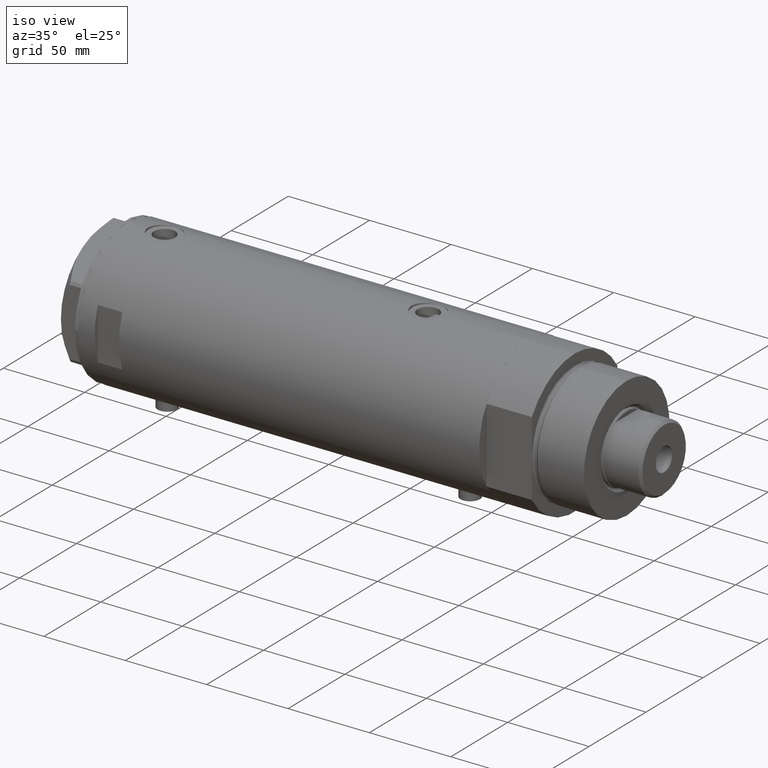
[diagram: clean part render]
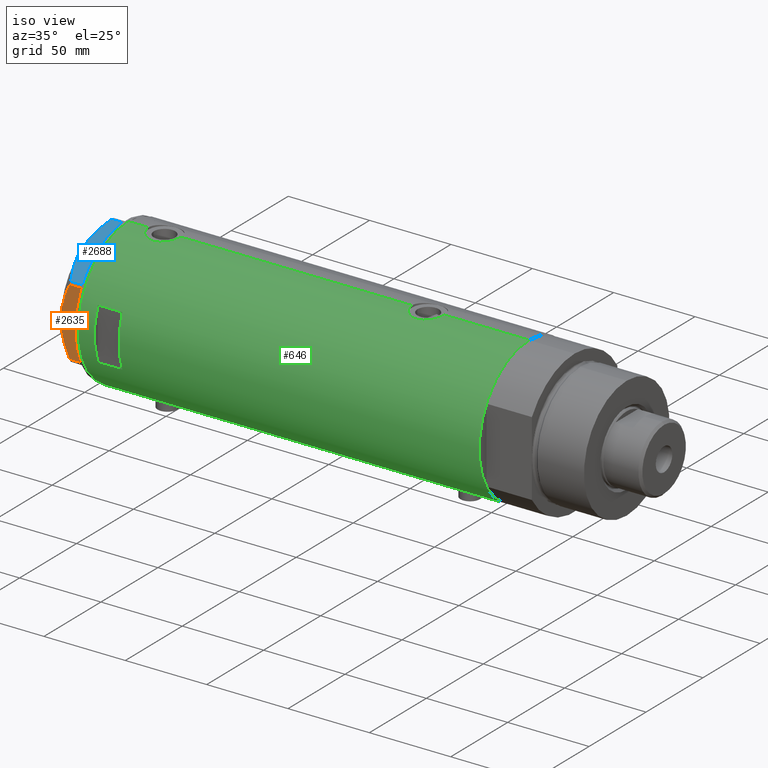
[diagram: same view with three faces highlighted in distinct colors, each labeled with its STEP entity id]
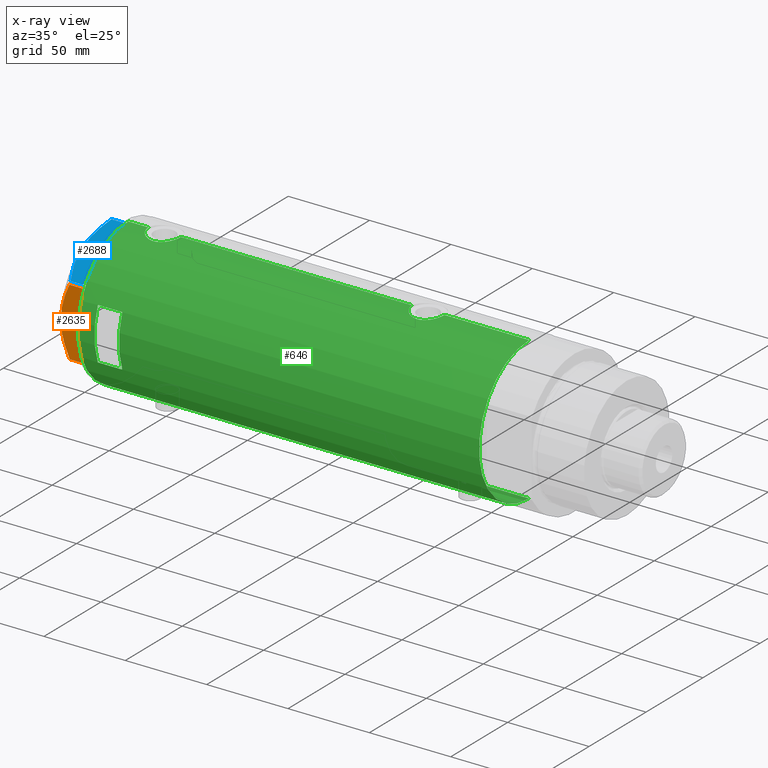
[diagram: x-ray of the same camera — body ghosted, the three highlighted faces saturated]
A machine part, iso view with three faces highlighted in distinct colors.
The next image is the same camera in x-ray (body ghosted, the three faces saturated) — at least one of them is partly hidden behind the body in this view.
Their STEP definitions:

[orange] entity #2635 — the highlighted planar face has unit normal (-0, 1, 0).
#28 = ORIENTED_EDGE ( 'NONE', *, *, #4064, .F. ) ;
#113 = CARTESIAN_POINT ( 'NONE',  ( -37.75000000000000711, 20.67497266190837024, 0.000000000000000000 ) ) ;
#307 = CARTESIAN_POINT ( 'NONE',  ( -37.75000000000000000, -17.40390235304479205, 9.187919079516763787 ) ) ;
#321 = VERTEX_POINT ( 'NONE', #113 ) ;
#353 = CARTESIAN_POINT ( 'NONE',  ( -37.74999999999999289, -16.56731140591524110, 9.531835068628826235 ) ) ;
#437 = VECTOR ( 'NONE', #613, 1000.000000000000000 ) ;
#475 = CARTESIAN_POINT ( 'NONE',  ( -37.75000000000000711, 21.79497266190837124, 13.00000000000000000 ) ) ;
#489 = DIRECTION ( 'NONE',  ( 0.000000000000000000, 0.000000000000000000, 1.000000000000000000 ) ) ;
#613 = DIRECTION ( 'NONE',  ( 0.000000000000000000, 0.000000000000000000, -1.000000000000000000 ) ) ;
#723 = CARTESIAN_POINT ( 'NONE',  ( -37.75000000000000000, -0.9015134592203577490, 13.00000000000000178 ) ) ;
#732 = CARTESIAN_POINT ( 'NONE',  ( -37.75000000000001421, 19.06473524669327446, 8.482612457517163307 ) ) ;
#759 = CARTESIAN_POINT ( 'NONE',  ( -37.75000000000000000, 7.143641079404827288, 12.47474846747316946 ) ) ;
#1008 = ORIENTED_EDGE ( 'NONE', *, *, #2862, .T. ) ;
#1038 = CARTESIAN_POINT ( 'NONE',  ( -37.74999999999999289, -20.67497266190837379, 0.000000000000000000 ) ) ;
#1048 = CARTESIAN_POINT ( 'NONE',  ( -37.75000000000000000, -1.811728074765795338, 12.96720910498919999 ) ) ;
#1073 = CARTESIAN_POINT ( 'NONE',  ( -37.75000000000000711, 20.67497266190838090, 7.709124142616995634 ) ) ;
#1092 = CARTESIAN_POINT ( 'NONE',  ( -37.75000000000000000, -19.86857906850810096, 8.096480699986589258 ) ) ;
#1104 = VERTEX_POINT ( 'NONE', #3779 ) ;
#1125 = B_SPLINE_CURVE_WITH_KNOTS ( 'NONE', 3,
 ( #4202, #723, #1048, #3860, #1703, #3881, #3200, #2099, #3516, #353, #307, #1749, #1092, #3176 ),
 .UNSPECIFIED., .F., .F.,
 ( 4, 2, 2, 2, 2, 2, 4 ),
 ( 0.07749717587205659508, 0.08017617902235898986, 0.08285518217266138463, 0.08821318847326617418, 0.09357119477387096373, 0.09625019792417334463, 0.09892920107447573941 ),
 .UNSPECIFIED. ) ;
#1226 = DIRECTION ( 'NONE',  ( -3.183713056926429451E-16, 1.000000000000000000, 0.000000000000000000 ) ) ;
#1264 = CARTESIAN_POINT ( 'NONE',  ( -37.75000000000000711, 21.79497266190837124, 0.000000000000000000 ) ) ;
#1484 = ORIENTED_EDGE ( 'NONE', *, *, #2885, .T. ) ;
#1531 = FACE_OUTER_BOUND ( 'NONE', #3214, .T. ) ;
#1703 = CARTESIAN_POINT ( 'NONE',  ( -37.75000000000000000, -4.503994958793054337, 12.74237531377022670 ) ) ;
#1749 = CARTESIAN_POINT ( 'NONE',  ( -37.75000000000000000, -19.05362936076134517, 8.470554105526115762 ) ) ;
#1757 = CARTESIAN_POINT ( 'NONE',  ( -37.75000000000000711, 3.615248338761639868, 13.00000000000000355 ) ) ;
#1821 = VERTEX_POINT ( 'NONE', #4514 ) ;
#2080 = VERTEX_POINT ( 'NONE', #1038 ) ;
#2099 = CARTESIAN_POINT ( 'NONE',  ( -37.74999999999999289, -12.34877760086739862, 11.06613894200179260 ) ) ;
#2239 = LINE ( 'NONE', #4008, #2288 ) ;
#2288 = VECTOR ( 'NONE', #489, 1000.000000000000000 ) ;
#2329 = CARTESIAN_POINT ( 'NONE',  ( -37.75000000000000711, 20.67497266190837024, 13.00000000000000000 ) ) ;
#2484 = VERTEX_POINT ( 'NONE', #3340 ) ;
#2486 = CARTESIAN_POINT ( 'NONE',  ( -37.74999999999999289, 14.04433099034388199, 10.48027127384610857 ) ) ;
#2514 = CARTESIAN_POINT ( 'NONE',  ( -37.75000000000000000, -1.201851678989727067E-14, 13.00000000000000000 ) ) ;
#2635 = ADVANCED_FACE ( 'NONE', ( #1531 ), #3634, .F. ) ;
#2659 = VECTOR ( 'NONE', #2718, 1000.000000000000000 ) ;
#2718 = DIRECTION ( 'NONE',  ( 3.183713056926429451E-16, -1.000000000000000000, 0.000000000000000000 ) ) ;
#2775 = ORIENTED_EDGE ( 'NONE', *, *, #3360, .T. ) ;
#2862 = EDGE_CURVE ( 'NONE', #1104, #321, #4132, .T. ) ;
#2885 = EDGE_CURVE ( 'NONE', #321, #2080, #3062, .T. ) ;
#3062 = LINE ( 'NONE', #1264, #2659 ) ;
#3176 = CARTESIAN_POINT ( 'NONE',  ( -37.74999999999999289, -20.67497266190838090, 7.709124142616975206 ) ) ;
#3200 = CARTESIAN_POINT ( 'NONE',  ( -37.75000000000000000, -8.905753572404320195, 11.99914237172014886 ) ) ;
#3214 = EDGE_LOOP ( 'NONE', ( #4489, #1008, #1484, #2775, #28 ) ) ;
#3340 = CARTESIAN_POINT ( 'NONE',  ( -37.74999999999999289, -20.67497266190838090, 7.709124142616975206 ) ) ;
#3360 = EDGE_CURVE ( 'NONE', #2080, #2484, #2239, .T. ) ;
#3516 = CARTESIAN_POINT ( 'NONE',  ( -37.74999999999999289, -14.04742653794399132, 10.50092616350622698 ) ) ;
#3522 = CARTESIAN_POINT ( 'NONE',  ( -37.75000000000000000, 17.42329546264825524, 9.202188366597436442 ) ) ;
#3544 = B_SPLINE_CURVE_WITH_KNOTS ( 'NONE', 3,
 ( #1073, #732, #3522, #4235, #2486, #4209, #4257, #759, #1757, #2514 ),
 .UNSPECIFIED., .F., .F.,
 ( 4, 2, 2, 2, 4 ),
 ( 0.05601050456479945983, 0.06138217239161374017, 0.06406800630502088034, 0.06675384021842802051, 0.07749717587205659508 ),
 .UNSPECIFIED. ) ;
#3590 = EDGE_CURVE ( 'NONE', #1104, #1821, #3544, .T. ) ;
#3634 = PLANE ( 'NONE',  #4401 ) ;
#3779 = CARTESIAN_POINT ( 'NONE',  ( -37.75000000000000711, 20.67497266190838090, 7.709124142616995634 ) ) ;
#3860 = CARTESIAN_POINT ( 'NONE',  ( -37.74999999999998579, -3.611424898442238351, 12.83826937481876662 ) ) ;
#3881 = CARTESIAN_POINT ( 'NONE',  ( -37.74999999999999289, -7.161343005612803125, 12.36677985830371895 ) ) ;
#4008 = CARTESIAN_POINT ( 'NONE',  ( -37.74999999999999289, -20.67497266190837379, 13.00000000000000000 ) ) ;
#4064 = EDGE_CURVE ( 'NONE', #1821, #2484, #1125, .T. ) ;
#4132 = LINE ( 'NONE', #2329, #437 ) ;
#4202 = CARTESIAN_POINT ( 'NONE',  ( -37.75000000000000000, -1.201851678989727067E-14, 13.00000000000000000 ) ) ;
#4209 = CARTESIAN_POINT ( 'NONE',  ( -37.74999999999999289, 12.33018559404073855, 11.04557586999680474 ) ) ;
#4235 = CARTESIAN_POINT ( 'NONE',  ( -37.75000000000000000, 14.89874562435961103, 10.17375260246623903 ) ) ;
#4257 = CARTESIAN_POINT ( 'NONE',  ( -37.74999999999999289, 11.46926194450821690, 11.30493988086503521 ) ) ;
#4359 = DIRECTION ( 'NONE',  ( 1.000000000000000000, 3.183713056926429451E-16, -0.000000000000000000 ) ) ;
#4401 = AXIS2_PLACEMENT_3D ( 'NONE', #475, #4359, #1226 ) ;
#4489 = ORIENTED_EDGE ( 'NONE', *, *, #3590, .F. ) ;
#4514 = CARTESIAN_POINT ( 'NONE',  ( -37.75000000000000000, -1.201851678989727067E-14, 13.00000000000000000 ) ) ;

[blue] entity #2688 — the highlighted planar face has unit normal (-0, 0.5, -0.866).
#71 = CARTESIAN_POINT ( 'NONE',  ( -20.44120046918716582, -31.78821273037243245, 12.96759879420491579 ) ) ;
#79 = ORIENTED_EDGE ( 'NONE', *, *, #2799, .T. ) ;
#167 = CARTESIAN_POINT ( 'NONE',  ( -0.9699484522420150912, -43.02994532381475068, 7.709124142618884790 ) ) ;
#194 = CARTESIAN_POINT ( 'NONE',  ( -36.78005154776155905, -22.35497266190830246, 7.709124142616896158 ) ) ;
#204 = VECTOR ( 'NONE', #2241, 1000.000000000000000 ) ;
#300 = DIRECTION ( 'NONE',  ( 0.000000000000000000, 0.000000000000000000, 1.000000000000000000 ) ) ;
#409 = CARTESIAN_POINT ( 'NONE',  ( -26.62598697109946855, -28.21742457861298803, 11.98878493998158312 ) ) ;
#440 = CARTESIAN_POINT ( 'NONE',  ( -6.717640657183465258, -39.71151368207270593, 10.48240969891360663 ) ) ;
#507 = VERTEX_POINT ( 'NONE', #4430 ) ;
#535 = DIRECTION ( 'NONE',  ( 0.4999999999999998890, 0.8660254037844387076, -0.000000000000000000 ) ) ;
#706 = CARTESIAN_POINT ( 'NONE',  ( -22.79667224021351757, -30.42828046930181074, 12.73960743196720280 ) ) ;
#763 = CARTESIAN_POINT ( 'NONE',  ( -8.949419886525276979, -38.42299534324038746, 11.30742055474529195 ) ) ;
#786 = CARTESIAN_POINT ( 'NONE',  ( -8.199247025946510448, -38.85610784623428060, 11.04644118613120085 ) ) ;
#810 = VECTOR ( 'NONE', #3302, 1000.000000000000227 ) ;
#850 = B_SPLINE_CURVE_WITH_KNOTS ( 'NONE', 3,
 ( #2866, #2162, #1401, #2191, #3922, #763, #786, #440, #1838, #2817, #1178, #2218 ),
 .UNSPECIFIED., .F., .F.,
 ( 4, 2, 2, 2, 2, 4 ),
 ( 0.02259271946349905580, 0.02789559809390664002, 0.03319847672431422425, 0.03584991603951802330, 0.03850135535472180848, 0.04380423398512939964 ),
 .UNSPECIFIED. ) ;
#879 = PLANE ( 'NONE',  #4176 ) ;
#881 = EDGE_CURVE ( 'NONE', #1772, #2140, #1180, .T. ) ;
#1000 = CARTESIAN_POINT ( 'NONE',  ( -36.78005154776155905, -22.35497266190830246, 7.709124142616896158 ) ) ;
#1098 = CARTESIAN_POINT ( 'NONE',  ( -18.87499999999999645, -32.69245899286255508, 13.00000000000000000 ) ) ;
#1178 = CARTESIAN_POINT ( 'NONE',  ( -2.376799045726867732, -42.21769975495670479, 8.489459328479822986 ) ) ;
#1180 = LINE ( 'NONE', #2982, #204 ) ;
#1223 = EDGE_LOOP ( 'NONE', ( #4493, #1643, #79, #2639, #3229 ) ) ;
#1368 = CARTESIAN_POINT ( 'NONE',  ( -25.11263918036253884, -29.09115633297249204, 12.35956205105863326 ) ) ;
#1401 = CARTESIAN_POINT ( 'NONE',  ( -15.78316139395997908, -34.47753284435064813, 12.87183830165164800 ) ) ;
#1405 = VERTEX_POINT ( 'NONE', #167 ) ;
#1544 = LINE ( 'NONE', #1880, #810 ) ;
#1601 = CARTESIAN_POINT ( 'NONE',  ( -33.96695484073207183, -23.97911480296823683, 9.269459228581803600 ) ) ;
#1643 = ORIENTED_EDGE ( 'NONE', *, *, #881, .T. ) ;
#1772 = VERTEX_POINT ( 'NONE', #194 ) ;
#1838 = CARTESIAN_POINT ( 'NONE',  ( -5.984301592053449248, -40.13490718873278951, 10.17879673963541087 ) ) ;
#1880 = CARTESIAN_POINT ( 'NONE',  ( -37.74999999999999289, -21.79497266190838189, 0.000000000000000000 ) ) ;
#1953 = CARTESIAN_POINT ( 'NONE',  ( -37.74999999999999289, -21.79497266190838189, 13.00000000000000000 ) ) ;
#2054 = EDGE_CURVE ( 'NONE', #2143, #1405, #3459, .T. ) ;
#2140 = VERTEX_POINT ( 'NONE', #2678 ) ;
#2143 = VERTEX_POINT ( 'NONE', #2326 ) ;
#2162 = CARTESIAN_POINT ( 'NONE',  ( -17.32290914057169928, -33.58855906836025440, 12.99999999999999822 ) ) ;
#2191 = CARTESIAN_POINT ( 'NONE',  ( -12.72654504259227259, -36.24227111762220943, 12.37795492145981235 ) ) ;
#2218 = CARTESIAN_POINT ( 'NONE',  ( -0.9699484522420150912, -43.02994532381475068, 7.709124142618884790 ) ) ;
#2241 = DIRECTION ( 'NONE',  ( -0.000000000000000000, 0.000000000000000000, -1.000000000000000000 ) ) ;
#2278 = VECTOR ( 'NONE', #300, 1000.000000000000000 ) ;
#2326 = CARTESIAN_POINT ( 'NONE',  ( -0.9699484522385920515, -43.02994532381674020, 0.000000000000000000 ) ) ;
#2639 = ORIENTED_EDGE ( 'NONE', *, *, #2054, .T. ) ;
#2640 = FACE_OUTER_BOUND ( 'NONE', #1223, .T. ) ;
#2678 = CARTESIAN_POINT ( 'NONE',  ( -36.78005154776141694, -22.35497266190838772, 0.000000000000000000 ) ) ;
#2688 = ADVANCED_FACE ( 'NONE', ( #2640 ), #879, .F. ) ;
#2799 = EDGE_CURVE ( 'NONE', #2140, #2143, #1544, .T. ) ;
#2817 = CARTESIAN_POINT ( 'NONE',  ( -3.804046002727119014, -41.39367834013252434, 9.210778219601836625 ) ) ;
#2826 = B_SPLINE_CURVE_WITH_KNOTS ( 'NONE', 3,
 ( #1000, #1601, #3020, #409, #1368, #706, #3573, #71, #2835, #1098 ),
 .UNSPECIFIED., .F., .F.,
 ( 4, 2, 2, 2, 4 ),
 ( 0.001231023567492484571, 0.01191187151549577550, 0.01725229548949741565, 0.01992250747649823572, 0.02259271946349905580 ),
 .UNSPECIFIED. ) ;
#2835 = CARTESIAN_POINT ( 'NONE',  ( -19.65653997226998584, -32.24123667949004357, 13.00000000000000178 ) ) ;
#2866 = CARTESIAN_POINT ( 'NONE',  ( -18.87499999999999645, -32.69245899286255508, 13.00000000000000000 ) ) ;
#2982 = CARTESIAN_POINT ( 'NONE',  ( -36.78005154776141694, -22.35497266190838772, 13.00000000000000000 ) ) ;
#3020 = CARTESIAN_POINT ( 'NONE',  ( -31.09047021924039811, -25.63985397350626272, 10.58681170757598977 ) ) ;
#3229 = ORIENTED_EDGE ( 'NONE', *, *, #3286, .F. ) ;
#3286 = EDGE_CURVE ( 'NONE', #507, #1405, #850, .T. ) ;
#3302 = DIRECTION ( 'NONE',  ( 0.8660254037844385966, -0.4999999999999998890, 0.000000000000000000 ) ) ;
#3397 = DIRECTION ( 'NONE',  ( -0.8660254037844387076, 0.4999999999999998890, 0.000000000000000000 ) ) ;
#3459 = LINE ( 'NONE', #4509, #2278 ) ;
#3565 = EDGE_CURVE ( 'NONE', #1772, #507, #2826, .T. ) ;
#3573 = CARTESIAN_POINT ( 'NONE',  ( -22.01686507582220997, -30.87850234557913609, 12.83692902789789869 ) ) ;
#3922 = CARTESIAN_POINT ( 'NONE',  ( -11.20965750620535673, -37.11804654508558343, 12.01242981158399914 ) ) ;
#4176 = AXIS2_PLACEMENT_3D ( 'NONE', #1953, #535, #3397 ) ;
#4430 = CARTESIAN_POINT ( 'NONE',  ( -18.87499999999999645, -32.69245899286255508, 13.00000000000000000 ) ) ;
#4493 = ORIENTED_EDGE ( 'NONE', *, *, #3565, .F. ) ;
#4509 = CARTESIAN_POINT ( 'NONE',  ( -0.9699484522385850571, -43.02994532381674020, 13.00000000000000000 ) ) ;

[green] entity #646 — the highlighted cylindrical surface (partial cylindrical patch) has radius 44 mm, axis along (-1, -0, 0).
#6 = CARTESIAN_POINT ( 'NONE',  ( 43.13833976206233700, -8.672905216733552081, 105.9203292102081804 ) ) ;
#18 = EDGE_LOOP ( 'NONE', ( #2173, #3836, #1508, #2001 ) ) ;
#23 = CARTESIAN_POINT ( 'NONE',  ( -43.91398925748692506, -2.775454910411446097, 104.8147077568106482 ) ) ;
#25 = CARTESIAN_POINT ( 'NONE',  ( -15.96871942267132027, -40.99999999999999289, 98.19999999999998863 ) ) ;
#56 = VERTEX_POINT ( 'NONE', #469 ) ;
#74 = CARTESIAN_POINT ( 'NONE',  ( 42.84860178791322483, -9.999866241079299556, -60.76603617305838156 ) ) ;
#97 = CARTESIAN_POINT ( 'NONE',  ( 43.35257225115238100, -7.523216248090028202, -67.69605303592346957 ) ) ;
#149 = EDGE_CURVE ( 'NONE', #3859, #3870, #2077, .T. ) ;
#171 = LINE ( 'NONE', #4329, #4030 ) ;
#195 = CARTESIAN_POINT ( 'NONE',  ( -43.97729452866927602, -1.427712738744856047, -80.81177092556575303 ) ) ;
#207 = CARTESIAN_POINT ( 'NONE',  ( -43.74870614644074607, -4.704745394280565485, 95.06553512659974103 ) ) ;
#243 = CARTESIAN_POINT ( 'NONE',  ( -43.58327167020068060, -6.041691433183235205, -85.28672449216634277 ) ) ;
#250 = CARTESIAN_POINT ( 'NONE',  ( 43.71528002050703066, -5.005885132985644859, -52.43693693285515423 ) ) ;
#256 = CARTESIAN_POINT ( 'NONE',  ( 43.68175117880464597, -5.289576318274434641, 109.3927754329155846 ) ) ;
#277 = CARTESIAN_POINT ( 'NONE',  ( 43.27890888111421219, -7.936045294464967093, 106.9931843665719100 ) ) ;
#286 = CARTESIAN_POINT ( 'NONE',  ( 0.000000000000000000, 0.000000000000000000, -123.2000000000000028 ) ) ;
#291 = CARTESIAN_POINT ( 'NONE',  ( -43.95442538259509035, -2.011679190499021441, 93.27906453490220429 ) ) ;
#293 = VECTOR ( 'NONE', #1387, 1000.000000000000000 ) ;
#301 = CARTESIAN_POINT ( 'NONE',  ( 43.39001814939471302, -7.304817421876466987, 94.06296539328327810 ) ) ;
#313 = CARTESIAN_POINT ( 'NONE',  ( -43.97029046111977379, -1.628482392291941805, 105.2375861979205922 ) ) ;
#314 = CARTESIAN_POINT ( 'NONE',  ( 43.57790701154751645, -6.104591320335877924, -53.15258699105065432 ) ) ;
#319 = CARTESIAN_POINT ( 'NONE',  ( 43.88203303552250389, -3.235230624304763047, 91.43207386936016690 ) ) ;
#329 = CARTESIAN_POINT ( 'NONE',  ( -43.57664920749030557, -6.089110472216500369, 97.77636913130585583 ) ) ;
#333 = CARTESIAN_POINT ( 'NONE',  ( 42.96573602780769363, -9.487415353952515673, -64.32734544583620107 ) ) ;
#358 = CARTESIAN_POINT ( 'NONE',  ( -43.59959777593762453, -5.922725608094073557, 101.2064931121741722 ) ) ;
#362 = CARTESIAN_POINT ( 'NONE',  ( 42.84850870634925712, -10.00026508230968858, -61.75583915121742251 ) ) ;
#389 = CARTESIAN_POINT ( 'NONE',  ( -43.99417593155911987, -0.8219945290704643304, 105.4093810241296296 ) ) ;
#404 = ORIENTED_EDGE ( 'NONE', *, *, #2992, .F. ) ;
#408 = CARTESIAN_POINT ( 'NONE',  ( -43.94477385411916970, -2.211843467998030111, 105.0490722992286692 ) ) ;
#420 = CIRCLE ( 'NONE', #1084, 44.00000000000000000 ) ;
#424 = EDGE_CURVE ( 'NONE', #3870, #1702, #3023, .T. ) ;
#444 = CARTESIAN_POINT ( 'NONE',  ( 44.00000000000000000, -0.6628808997490054367, 90.90000000000001990 ) ) ;
#445 = VERTEX_POINT ( 'NONE', #2626 ) ;
#464 = LINE ( 'NONE', #2593, #640 ) ;
#469 = CARTESIAN_POINT ( 'NONE',  ( 44.00000000000000000, -1.742910476879209922E-15, -71.10000000000000853 ) ) ;
#523 = CARTESIAN_POINT ( 'NONE',  ( -43.83572624786197025, -3.813948911733269664, -91.86836430220658656 ) ) ;
#530 = ORIENTED_EDGE ( 'NONE', *, *, #4059, .F. ) ;
#543 = CARTESIAN_POINT ( 'NONE',  ( -43.59959777593761743, -5.922725608094073557, -84.89350688782587895 ) ) ;
#583 = CARTESIAN_POINT ( 'NONE',  ( -43.55964145621771877, -6.209995197331128480, -86.08476386616429465 ) ) ;
#586 = DIRECTION ( 'NONE',  ( 1.000000000000000000, 0.000000000000000000, 0.000000000000000000 ) ) ;
#588 = AXIS2_PLACEMENT_3D ( 'NONE', #286, #930, #586 ) ;
#606 = CARTESIAN_POINT ( 'NONE',  ( -43.88927795770376861, -3.124736516396338093, -92.31667404923808817 ) ) ;
#623 = CARTESIAN_POINT ( 'NONE',  ( 43.39114022679085281, -7.298186114522533074, 107.7441727949206438 ) ) ;
#640 = VECTOR ( 'NONE', #2995, 1000.000000000000000 ) ;
#646 = ADVANCED_FACE ( 'NONE', ( #2458, #4171 ), #3786, .T. ) ;
#670 = CARTESIAN_POINT ( 'NONE',  ( 43.07321175413310499, -8.986876637256992595, 96.46571798011248688 ) ) ;
#671 = EDGE_LOOP ( 'NONE', ( #2449, #2005, #743, #4138, #1337, #2304, #2071, #4188, #530, #404, #2562, #2086 ) ) ;
#681 = EDGE_CURVE ( 'NONE', #445, #3632, #2846, .T. ) ;
#682 = CARTESIAN_POINT ( 'NONE',  ( -43.55981666146651321, -6.208773019004409477, 98.37562000806386209 ) ) ;
#685 = CARTESIAN_POINT ( 'NONE',  ( 43.71626298452613923, -5.019105827807316622, -69.77413437979598143 ) ) ;
#692 = CARTESIAN_POINT ( 'NONE',  ( 42.84860178791322483, -9.999866241079297779, 101.2339638269416326 ) ) ;
#708 = CARTESIAN_POINT ( 'NONE',  ( 43.94187300917954531, -2.283844398366606132, -70.84126046817048916 ) ) ;
#721 = CIRCLE ( 'NONE', #3009, 44.00000000000000000 ) ;
#727 = VERTEX_POINT ( 'NONE', #3271 ) ;
#729 = VERTEX_POINT ( 'NONE', #1670 ) ;
#730 = CARTESIAN_POINT ( 'NONE',  ( -43.80623767923739820, -4.134861581628530125, 103.9043636726069764 ) ) ;
#734 = CARTESIAN_POINT ( 'NONE',  ( 43.98503203903424463, -1.316644100880400403, -71.03472955295633540 ) ) ;
#742 = EDGE_CURVE ( 'NONE', #727, #4240, #1725, .T. ) ;
#743 = ORIENTED_EDGE ( 'NONE', *, *, #877, .T. ) ;
#767 = CARTESIAN_POINT ( 'NONE',  ( -44.00000000000000000, 5.388445781982983516E-15, 92.95000000000000284 ) ) ;
#795 = VERTEX_POINT ( 'NONE', #767 ) ;
#819 = LINE ( 'NONE', #4058, #1830 ) ;
#846 = DIRECTION ( 'NONE',  ( 0.000000000000000000, 0.000000000000000000, 1.000000000000000000 ) ) ;
#877 = EDGE_CURVE ( 'NONE', #1762, #56, #171, .T. ) ;
#889 = CARTESIAN_POINT ( 'NONE',  ( -43.55380622335315621, -6.250277076879245719, -86.49110166609810335 ) ) ;
#902 = VERTEX_POINT ( 'NONE', #2936 ) ;
#915 = CARTESIAN_POINT ( 'NONE',  ( 0.000000000000000000, 0.000000000000000000, 98.20000000000017337 ) ) ;
#930 = DIRECTION ( 'NONE',  ( 0.000000000000000000, 0.000000000000000000, 1.000000000000000000 ) ) ;
#935 = CARTESIAN_POINT ( 'NONE',  ( -43.97059312650997498, -1.620278982928819556, 93.16021308614132579 ) ) ;
#943 = CARTESIAN_POINT ( 'NONE',  ( 43.50370990764398016, -6.606474645717128169, 108.4352093528488865 ) ) ;
#948 = CARTESIAN_POINT ( 'NONE',  ( -43.58358352828439308, -6.039443007521657414, -88.52163098385740625 ) ) ;
#967 = CARTESIAN_POINT ( 'NONE',  ( 42.85249883256043546, -9.983208936152870194, 101.5657221654182081 ) ) ;
#984 = CARTESIAN_POINT ( 'NONE',  ( 43.88549648731377317, -3.229309612650767658, 110.3866430248638864 ) ) ;
#986 = EDGE_CURVE ( 'NONE', #729, #3761, #4532, .T. ) ;
#1001 = CARTESIAN_POINT ( 'NONE',  ( 43.80655905412561424, -4.132395729537631901, -51.98794673806236233 ) ) ;
#1006 = EDGE_CURVE ( 'NONE', #3125, #445, #420, .T. ) ;
#1010 = CARTESIAN_POINT ( 'NONE',  ( 43.57790701154752355, -6.104591320335876148, 108.8474130089493457 ) ) ;
#1017 = DIRECTION ( 'NONE',  ( 1.000000000000000000, 0.000000000000000000, 0.000000000000000000 ) ) ;
#1039 = CARTESIAN_POINT ( 'NONE',  ( 43.92776409818817740, -2.602555515054468582, 110.5780334928707447 ) ) ;
#1072 = CARTESIAN_POINT ( 'NONE',  ( -44.00000000000000000, 4.945856149313706956E-16, 105.4500000000000171 ) ) ;
#1075 = CARTESIAN_POINT ( 'NONE',  ( 43.92391465552168484, -2.605621203777297001, -70.76018015101780634 ) ) ;
#1084 = AXIS2_PLACEMENT_3D ( 'NONE', #3481, #3065, #4524 ) ;
#1120 = DIRECTION ( 'NONE',  ( -0.000000000000000000, -0.000000000000000000, -1.000000000000000000 ) ) ;
#1166 = LINE ( 'NONE', #1492, #4186 ) ;
#1169 = CARTESIAN_POINT ( 'NONE',  ( -43.97755541524607281, -1.419649999726221967, -92.99011143923634393 ) ) ;
#1210 = CARTESIAN_POINT ( 'NONE',  ( -43.83513771791773905, -3.820747781112549646, -81.93678981703629916 ) ) ;
#1228 = CARTESIAN_POINT ( 'NONE',  ( -43.71916086763248899, -4.968610719017467758, -90.71335998854627292 ) ) ;
#1239 = CARTESIAN_POINT ( 'NONE',  ( -44.00000000000000000, 5.388445781982983516E-15, 92.95000000000000284 ) ) ;
#1244 = CARTESIAN_POINT ( 'NONE',  ( 0.000000000000000000, 0.000000000000000000, 123.2000000000000028 ) ) ;
#1333 = CARTESIAN_POINT ( 'NONE',  ( 42.96858625215907779, -9.471543237354833167, 104.1244477931078194 ) ) ;
#1337 = ORIENTED_EDGE ( 'NONE', *, *, #3073, .T. ) ;
#1343 = CARTESIAN_POINT ( 'NONE',  ( -43.83513771791773195, -3.820747781112552754, 104.1632101829637378 ) ) ;
#1351 = EDGE_CURVE ( 'NONE', #1702, #795, #464, .T. ) ;
#1355 = CARTESIAN_POINT ( 'NONE',  ( 43.61181667275830875, -5.838254419127776096, 92.77455890582506015 ) ) ;
#1367 = CARTESIAN_POINT ( 'NONE',  ( -43.60943079847654502, -5.850114217193380206, 96.99078124073395202 ) ) ;
#1369 = CARTESIAN_POINT ( 'NONE',  ( 43.07447880731470491, -8.980869115410037296, -56.65290029795897198 ) ) ;
#1384 = CARTESIAN_POINT ( 'NONE',  ( 0.000000000000000000, 0.000000000000000000, -123.2000000000000028 ) ) ;
#1387 = DIRECTION ( 'NONE',  ( 0.000000000000000000, 0.000000000000000000, 1.000000000000000000 ) ) ;
#1395 = CARTESIAN_POINT ( 'NONE',  ( -43.71863308610075904, -4.973248429199019327, 103.0073779012117541 ) ) ;
#1398 = CARTESIAN_POINT ( 'NONE',  ( 42.86369059155249062, -9.935849517229280892, -62.40637410018199915 ) ) ;
#1427 = CARTESIAN_POINT ( 'NONE',  ( 44.00000000000000000, -2.119006702872526837E-15, 90.90000000000000568 ) ) ;
#1466 = CARTESIAN_POINT ( 'NONE',  ( -43.99999999999998579, -0.4080709675389182500, -93.15000000000000568 ) ) ;
#1472 = CARTESIAN_POINT ( 'NONE',  ( 43.13689707656755701, -8.680169016269177362, -66.10836902111202562 ) ) ;
#1492 = CARTESIAN_POINT ( 'NONE',  ( 44.00000000000000000, 0.000000000000000000, -123.2000000000000028 ) ) ;
#1508 = ORIENTED_EDGE ( 'NONE', *, *, #1006, .F. ) ;
#1557 = CARTESIAN_POINT ( 'NONE',  ( -43.88932649443424339, -3.137583818903200594, -81.47900961940457876 ) ) ;
#1565 = DIRECTION ( 'NONE',  ( 0.000000000000000000, 0.000000000000000000, 1.000000000000000000 ) ) ;
#1592 = CARTESIAN_POINT ( 'NONE',  ( -44.00000000000000711, -0.4134142287044829667, -80.65000000000003411 ) ) ;
#1599 = CARTESIAN_POINT ( 'NONE',  ( -43.71916086763249609, -4.968610719017477528, 95.38664001145379245 ) ) ;
#1616 = CIRCLE ( 'NONE', #588, 44.00000000000000000 ) ;
#1634 = CARTESIAN_POINT ( 'NONE',  ( -44.00000000000000000, 4.742402805755500961E-16, -80.65000000000000568 ) ) ;
#1635 = CARTESIAN_POINT ( 'NONE',  ( -43.94477385411918391, -2.211843467998029222, -81.05092770077139619 ) ) ;
#1642 = CARTESIAN_POINT ( 'NONE',  ( 44.00000000000000000, -3.917167710965456221E-21, -51.10000000000000853 ) ) ;
#1647 = CARTESIAN_POINT ( 'NONE',  ( 42.86761451923558042, -9.918101748202657220, 102.2186752354962636 ) ) ;
#1650 = VECTOR ( 'NONE', #4518, 1000.000000000000000 ) ;
#1670 = CARTESIAN_POINT ( 'NONE',  ( -44.00000000000000000, 5.388445916248352830E-15, 123.2000000000000028 ) ) ;
#1685 = CARTESIAN_POINT ( 'NONE',  ( -43.80686114384899810, -4.128296917151111245, 94.48984144871687363 ) ) ;
#1689 = CARTESIAN_POINT ( 'NONE',  ( 43.92776409818818451, -2.602555515054471247, -51.42196650712919137 ) ) ;
#1695 = CARTESIAN_POINT ( 'NONE',  ( 43.46477581456304051, -6.845969322274853219, 93.60355539876690045 ) ) ;
#1702 = VERTEX_POINT ( 'NONE', #1634 ) ;
#1709 = CARTESIAN_POINT ( 'NONE',  ( -43.58358352828437177, -6.039443007521655638, 97.57836901614263070 ) ) ;
#1711 = CARTESIAN_POINT ( 'NONE',  ( 43.39114022679083860, -7.298186114522538404, -54.25582720507937751 ) ) ;
#1717 = CARTESIAN_POINT ( 'NONE',  ( 43.77763691689008851, -4.427538730370032205, 109.8724271220806941 ) ) ;
#1725 = B_SPLINE_CURVE_WITH_KNOTS ( 'NONE', 3,
 ( #4510, #3099, #3141, #1039, #984, #4531, #1717, #3764, #256, #1010, #943, #623, #2728, #277, #2451, #6, #3853, #4491, #1333, #2749, #3423, #1647, #967, #692, #4140, #2090, #3070, #1741, #670, #3461, #2398, #3805, #4466, #301, #1695, #3124, #2017, #1355, #2771, #4165, #2422, #319, #2379, #3266, #4289, #444, #1427 ),
 .UNSPECIFIED., .F., .F.,
 ( 4, 2, 2, 2, 2, 2, 2, 2, 2, 2, 1, 2, 2, 2, 2, 2, 2, 2, 2, 2, 2, 2, 2, 4 ),
 ( 0.03136730421198211799, 0.03332724096696803445, 0.03528717772195395785, 0.03626714609944691609, 0.03724711447693987432, 0.03920705123192579078, 0.04018701960941873513, 0.04116698798691167949, 0.04312692474189759595, 0.04410689311939056112, 0.04508686149688351935, 0.04606682987437648452, 0.04704679825186944275, 0.04900673500685531758, 0.05096667176184120629, 0.05292660851682708112, 0.05390657689432002547, 0.05488654527181296983, 0.05586651364930590724, 0.05684648202679884466, 0.05880641878178471949, 0.05978638715927767078, 0.06076635553677062207, 0.06272629229175652465 ),
 .UNSPECIFIED. ) ;
#1730 = CARTESIAN_POINT ( 'NONE',  ( 43.99999999999999289, -0.6628808997490076571, -71.09999999999999432 ) ) ;
#1741 = CARTESIAN_POINT ( 'NONE',  ( 42.96573602780769363, -9.487415353952517449, 97.67265455416384157 ) ) ;
#1759 = CARTESIAN_POINT ( 'NONE',  ( 43.57553740812844723, -6.102230194686620202, -69.02899655988672123 ) ) ;
#1762 = VERTEX_POINT ( 'NONE', #2319 ) ;
#1777 = CARTESIAN_POINT ( 'NONE',  ( -43.55388615229804117, -6.249720082677240107, 98.78267485888017063 ) ) ;
#1810 = AXIS2_PLACEMENT_3D ( 'NONE', #1244, #4055, #4460 ) ;
#1830 = VECTOR ( 'NONE', #3692, 1000.000000000000000 ) ;
#1893 = B_SPLINE_CURVE_WITH_KNOTS ( 'NONE', 3,
 ( #1239, #4051, #3087, #1951, #935, #291, #3367, #2348, #2369, #2388, #3793, #1685, #207, #1599, #4417, #3155, #1367, #4521, #1709, #329, #682, #1777, #3521, #3182, #4547, #2107, #358, #2081, #2136, #3205, #1395, #3550, #730, #1343, #3819, #23, #408, #2786, #313, #3844, #389, #3478, #1072 ),
 .UNSPECIFIED., .F., .F.,
 ( 4, 2, 2, 1, 2, 2, 2, 2, 2, 2, 2, 2, 2, 2, 2, 2, 2, 2, 2, 2, 2, 4 ),
 ( 0.01956509074799517994, 0.02078761141254040559, 0.02139887174481301668, 0.02201013207708562777, 0.02262139240935823886, 0.02323265274163085342, 0.02445517340617609642, 0.02567769407072134288, 0.02690021473526658935, 0.02751147506753921085, 0.02812273539981183582, 0.02934525606435712392, 0.03056777672890240855, 0.03117903706117505433, 0.03179029739344770011, 0.03301281805799302638, 0.03423533872253834570, 0.03545785938708367196, 0.03668038005162899129, 0.03729164038390166136, 0.03790290071617431755, 0.03912542138071964382 ),
 .UNSPECIFIED. ) ;
#1927 = CARTESIAN_POINT ( 'NONE',  ( -43.55388615229803406, -6.249720082677240107, -87.31732514111985211 ) ) ;
#1940 = CARTESIAN_POINT ( 'NONE',  ( -43.60904414879381363, -5.852991024272605536, -84.69843683347096430 ) ) ;
#1951 = CARTESIAN_POINT ( 'NONE',  ( -43.97755541524607992, -1.419649999726222633, 93.10988856076367881 ) ) ;
#1963 = CARTESIAN_POINT ( 'NONE',  ( -43.66524845950889500, -5.422010366683132965, -90.03538043352982356 ) ) ;
#1992 = DIRECTION ( 'NONE',  ( 0.000000000000000000, 0.000000000000000000, 1.000000000000000000 ) ) ;
#2001 = ORIENTED_EDGE ( 'NONE', *, *, #2949, .F. ) ;
#2003 = CARTESIAN_POINT ( 'NONE',  ( -43.66469451360046605, -5.426465874727614214, -83.77225408135791440 ) ) ;
#2005 = ORIENTED_EDGE ( 'NONE', *, *, #4472, .T. ) ;
#2017 = CARTESIAN_POINT ( 'NONE',  ( 43.57553740812846144, -6.102230194686623754, 92.97100344011330719 ) ) ;
#2035 = B_SPLINE_CURVE_WITH_KNOTS ( 'NONE', 3,
 ( #1642, #2763, #3453, #1689, #4113, #1001, #3480, #250, #3064, #314, #4458, #1711, #3135, #2721, #2372, #4523, #1369, #2469, #4551, #3525, #3234, #3159, #2160, #74, #362, #1398, #3868, #333, #2814, #1472, #2837, #2536, #97, #3938, #3575, #3890, #1759, #2488, #685, #3185, #4237, #3499, #1075, #708, #734, #1730, #2139 ),
 .UNSPECIFIED., .F., .F.,
 ( 4, 2, 2, 2, 2, 2, 2, 2, 2, 2, 1, 2, 2, 2, 2, 2, 2, 2, 2, 2, 2, 2, 2, 4 ),
 ( 0.03136730421198213187, 0.03332724096696806221, 0.03528717772195399255, 0.03626714609944695078, 0.03724711447693991595, 0.03920705123192583241, 0.04018701960941878371, 0.04116698798691173500, 0.04312692474189763758, 0.04410689311939058888, 0.04508686149688354017, 0.04606682987437649146, 0.04704679825186944275, 0.04900673500685532452, 0.05096667176184120629, 0.05292660851682708806, 0.05390657689432004629, 0.05488654527181299758, 0.05586651364930594887, 0.05684648202679890711, 0.05880641878178481663, 0.05978638715927775404, 0.06076635553677070534, 0.06272629229175658017 ),
 .UNSPECIFIED. ) ;
#2071 = ORIENTED_EDGE ( 'NONE', *, *, #4160, .T. ) ;
#2077 = LINE ( 'NONE', #3517, #1650 ) ;
#2081 = CARTESIAN_POINT ( 'NONE',  ( -43.60904414879381363, -5.852991024272606424, 101.4015631665291437 ) ) ;
#2086 = ORIENTED_EDGE ( 'NONE', *, *, #424, .F. ) ;
#2090 = CARTESIAN_POINT ( 'NONE',  ( 42.86369059155247641, -9.935849517229275563, 99.59362589981802216 ) ) ;
#2096 = DIRECTION ( 'NONE',  ( 0.000000000000000000, 0.000000000000000000, 1.000000000000000000 ) ) ;
#2104 = VECTOR ( 'NONE', #1120, 1000.000000000000000 ) ;
#2107 = CARTESIAN_POINT ( 'NONE',  ( -43.58327167020068771, -6.041691433183236981, 100.8132755078336658 ) ) ;
#2117 = EDGE_CURVE ( 'NONE', #3632, #3776, #721, .T. ) ;
#2136 = CARTESIAN_POINT ( 'NONE',  ( -43.64013512596971367, -5.618144550806293047, 101.9688425437316539 ) ) ;
#2139 = CARTESIAN_POINT ( 'NONE',  ( 44.00000000000000000, -1.742910476879209922E-15, -71.10000000000000853 ) ) ;
#2150 = CARTESIAN_POINT ( 'NONE',  ( -15.96871942267131672, -40.99999999999999289, -123.2000000000000028 ) ) ;
#2160 = CARTESIAN_POINT ( 'NONE',  ( 42.85249883256042835, -9.983208936152877300, -60.43427783458179192 ) ) ;
#2173 = ORIENTED_EDGE ( 'NONE', *, *, #2117, .F. ) ;
#2230 = CARTESIAN_POINT ( 'NONE',  ( -43.93596008603758207, -2.395372424984026694, -92.68349180530613296 ) ) ;
#2256 = DIRECTION ( 'NONE',  ( -0.000000000000000000, -4.625929269271481378E-15, 1.000000000000000000 ) ) ;
#2302 = CARTESIAN_POINT ( 'NONE',  ( -43.55981666146652742, -6.208773019004409477, -87.72437999193618907 ) ) ;
#2304 = ORIENTED_EDGE ( 'NONE', *, *, #742, .F. ) ;
#2319 = CARTESIAN_POINT ( 'NONE',  ( 44.00000000000000000, 0.000000000000000000, -123.2000000000000028 ) ) ;
#2348 = CARTESIAN_POINT ( 'NONE',  ( -43.91347832647110039, -2.763895659397272553, 93.59061350622417308 ) ) ;
#2360 = CARTESIAN_POINT ( 'NONE',  ( -43.57664920749031268, -6.089110472216499481, -88.32363086869412427 ) ) ;
#2369 = CARTESIAN_POINT ( 'NONE',  ( -43.88927795770376861, -3.124736516396338981, 93.78332595076190614 ) ) ;
#2372 = CARTESIAN_POINT ( 'NONE',  ( 43.24269204559828950, -8.130405600641552155, -55.26885497193006103 ) ) ;
#2379 = CARTESIAN_POINT ( 'NONE',  ( 43.92391465552169905, -2.605621203777302775, 91.23981984898226472 ) ) ;
#2388 = CARTESIAN_POINT ( 'NONE',  ( -43.87623998657198143, -3.302247739865013632, 93.88965656480257849 ) ) ;
#2398 = CARTESIAN_POINT ( 'NONE',  ( 43.24192112218942441, -8.134529092006104634, 95.07447770135891574 ) ) ;
#2422 = CARTESIAN_POINT ( 'NONE',  ( 43.85817087158036998, -3.542878095418176887, 91.54296338884479667 ) ) ;
#2449 = ORIENTED_EDGE ( 'NONE', *, *, #149, .F. ) ;
#2451 = CARTESIAN_POINT ( 'NONE',  ( 43.24269204559828239, -8.130405600641543273, 106.7311450280699319 ) ) ;
#2458 = FACE_OUTER_BOUND ( 'NONE', #671, .T. ) ;
#2469 = CARTESIAN_POINT ( 'NONE',  ( 42.99316244204495518, -9.359736474891656499, -57.56396979967825445 ) ) ;
#2488 = CARTESIAN_POINT ( 'NONE',  ( 43.61181667275830165, -5.838254419127786754, -69.22544109417493985 ) ) ;
#2536 = CARTESIAN_POINT ( 'NONE',  ( 43.27861175590267351, -7.937636171351968528, -67.19102867990997652 ) ) ;
#2562 = ORIENTED_EDGE ( 'NONE', *, *, #1351, .F. ) ;
#2585 = CARTESIAN_POINT ( 'NONE',  ( -43.97059312650996787, -1.620278982928820444, -92.93978691385871116 ) ) ;
#2593 = CARTESIAN_POINT ( 'NONE',  ( -44.00000000000000000, 5.388445916248352830E-15, -123.2000000000000028 ) ) ;
#2626 = CARTESIAN_POINT ( 'NONE',  ( -15.96871942267132027, -40.99999999999999289, 113.1999999999999886 ) ) ;
#2650 = CARTESIAN_POINT ( 'NONE',  ( -43.71863308610073773, -4.973248429199020215, -83.09262209878829708 ) ) ;
#2674 = CARTESIAN_POINT ( 'NONE',  ( -43.91398925748691795, -2.775454910411441656, -81.28529224318936031 ) ) ;
#2690 = CARTESIAN_POINT ( 'NONE',  ( -44.00000000000000000, 5.388445781982983516E-15, -93.15000000000000568 ) ) ;
#2712 = CARTESIAN_POINT ( 'NONE',  ( -44.00000000000000000, 5.388445916248352830E-15, -123.2000000000000028 ) ) ;
#2721 = CARTESIAN_POINT ( 'NONE',  ( 43.27890888111422640, -7.936045294464967093, -55.00681563342806868 ) ) ;
#2728 = CARTESIAN_POINT ( 'NONE',  ( 43.35323102813806884, -7.519449998269471358, 107.5004228928426784 ) ) ;
#2749 = CARTESIAN_POINT ( 'NONE',  ( 42.92612181419235640, -9.662173761604311295, 103.4979978960971465 ) ) ;
#2763 = CARTESIAN_POINT ( 'NONE',  ( 44.00000000000000000, -0.6537011444665492554, -51.09999999999999432 ) ) ;
#2771 = CARTESIAN_POINT ( 'NONE',  ( 43.71626298452613923, -5.019105827807311293, 92.22586562020403278 ) ) ;
#2786 = CARTESIAN_POINT ( 'NONE',  ( -43.95404166778756405, -2.020054257598453695, 105.1180894548565590 ) ) ;
#2814 = CARTESIAN_POINT ( 'NONE',  ( 43.07321175413309078, -8.986876637256996148, -65.53428201988756996 ) ) ;
#2837 = CARTESIAN_POINT ( 'NONE',  ( 43.24192112218941730, -8.134529092006104634, -66.92552229864111268 ) ) ;
#2846 = LINE ( 'NONE', #2150, #2104 ) ;
#2905 = CARTESIAN_POINT ( 'NONE',  ( 44.00000000000000000, 0.000000000000000000, 123.2000000000000028 ) ) ;
#2936 = CARTESIAN_POINT ( 'NONE',  ( 44.00000000000000000, -3.917167710965456221E-21, -51.10000000000000853 ) ) ;
#2949 = EDGE_CURVE ( 'NONE', #3776, #3125, #3728, .T. ) ;
#2973 = CARTESIAN_POINT ( 'NONE',  ( -43.99417593155913409, -0.8219945290704695484, -80.69061897587040733 ) ) ;
#2987 = CARTESIAN_POINT ( 'NONE',  ( -43.87623998657197433, -3.302247739865014964, -92.21034343519743004 ) ) ;
#2992 = EDGE_CURVE ( 'NONE', #795, #3785, #1893, .T. ) ;
#2995 = DIRECTION ( 'NONE',  ( 0.000000000000000000, 0.000000000000000000, 1.000000000000000000 ) ) ;
#3009 = AXIS2_PLACEMENT_3D ( 'NONE', #915, #2256, #3924 ) ;
#3010 = CARTESIAN_POINT ( 'NONE',  ( -43.80686114384899810, -4.128296917151111245, -91.61015855128310648 ) ) ;
#3023 = B_SPLINE_CURVE_WITH_KNOTS ( 'NONE', 3,
 ( #3252, #1466, #3954, #1169, #2585, #3979, #2230, #3703, #606, #2987, #523, #3010, #4101, #1228, #1963, #4381, #3379, #3406, #948, #2360, #2302, #1927, #889, #583, #3769, #243, #543, #1940, #3355, #2003, #2650, #3426, #4019, #1210, #1557, #2674, #1635, #3056, #4042, #195, #2973, #1592, #4407 ),
 .UNSPECIFIED., .F., .F.,
 ( 4, 2, 2, 1, 2, 2, 2, 2, 2, 2, 2, 2, 2, 2, 2, 2, 2, 2, 2, 2, 2, 4 ),
 ( 0.01956509074799517994, 0.02078761141254040559, 0.02139887174481301668, 0.02201013207708562777, 0.02262139240935823886, 0.02323265274163085342, 0.02445517340617609989, 0.02567769407072134635, 0.02690021473526659282, 0.02751147506753921432, 0.02812273539981183929, 0.02934525606435712738, 0.03056777672890241548, 0.03117903706117505780, 0.03179029739344770011, 0.03301281805799302638, 0.03423533872253835264, 0.03545785938708367196, 0.03668038005162899823, 0.03729164038390166136, 0.03790290071617432449, 0.03912542138071965075 ),
 .UNSPECIFIED. ) ;
#3056 = CARTESIAN_POINT ( 'NONE',  ( -43.95404166778754984, -2.020054257598467018, -80.98191054514347798 ) ) ;
#3064 = CARTESIAN_POINT ( 'NONE',  ( 43.68175117880464597, -5.289576318274436417, -52.60722456708441541 ) ) ;
#3065 = DIRECTION ( 'NONE',  ( -0.000000000000000000, 0.000000000000000000, -1.000000000000000000 ) ) ;
#3070 = CARTESIAN_POINT ( 'NONE',  ( 42.92195198079052432, -9.681069926205539744, 98.31067499093484230 ) ) ;
#3073 = EDGE_CURVE ( 'NONE', #902, #4240, #819, .T. ) ;
#3087 = CARTESIAN_POINT ( 'NONE',  ( -43.99432382855036394, -0.8140126287075738487, 92.98957833183087018 ) ) ;
#3099 = CARTESIAN_POINT ( 'NONE',  ( 43.99999999999999289, -0.6537011444665493665, 110.9000000000000057 ) ) ;
#3124 = CARTESIAN_POINT ( 'NONE',  ( 43.50208939911752992, -6.605519787823896039, 93.38512753745570194 ) ) ;
#3125 = VERTEX_POINT ( 'NONE', #4399 ) ;
#3135 = CARTESIAN_POINT ( 'NONE',  ( 43.35323102813806173, -7.519449998269467805, -54.49957710715733583 ) ) ;
#3141 = CARTESIAN_POINT ( 'NONE',  ( 43.98543813568863214, -1.304985013906734714, 110.8365306627388378 ) ) ;
#3155 = CARTESIAN_POINT ( 'NONE',  ( -43.64064219598290606, -5.614224114468903792, 96.42314510380529669 ) ) ;
#3159 = CARTESIAN_POINT ( 'NONE',  ( 42.86761451923558042, -9.918101748202660772, -59.78132476450375066 ) ) ;
#3182 = CARTESIAN_POINT ( 'NONE',  ( -43.55964145621771877, -6.209995197331127592, 100.0152361338357565 ) ) ;
#3185 = CARTESIAN_POINT ( 'NONE',  ( 43.77905627191558580, -4.445085099228549552, -70.08140834316036205 ) ) ;
#3205 = CARTESIAN_POINT ( 'NONE',  ( -43.66469451360045895, -5.426465874727613325, 102.3277459186421083 ) ) ;
#3234 = CARTESIAN_POINT ( 'NONE',  ( 42.89003040145176726, -9.821289533110936887, -59.13508371670006625 ) ) ;
#3248 = VECTOR ( 'NONE', #1992, 1000.000000000000000 ) ;
#3252 = CARTESIAN_POINT ( 'NONE',  ( -44.00000000000000000, 5.388445781982983516E-15, -93.15000000000000568 ) ) ;
#3266 = CARTESIAN_POINT ( 'NONE',  ( 43.94187300917955952, -2.283844398366603912, 91.15873953182952505 ) ) ;
#3271 = CARTESIAN_POINT ( 'NONE',  ( 44.00000000000000000, -3.917104602093038540E-21, 110.9000000000000057 ) ) ;
#3355 = CARTESIAN_POINT ( 'NONE',  ( -43.64013512596970656, -5.618144550806293047, -84.13115745626835462 ) ) ;
#3367 = CARTESIAN_POINT ( 'NONE',  ( -43.93596008603759628, -2.395372424984027138, 93.41650819469390399 ) ) ;
#3379 = CARTESIAN_POINT ( 'NONE',  ( -43.60943079847655213, -5.850114217193378430, -89.10921875926607072 ) ) ;
#3406 = CARTESIAN_POINT ( 'NONE',  ( -43.59994860325051036, -5.920144153815573240, -88.91406357569761099 ) ) ;
#3423 = CARTESIAN_POINT ( 'NONE',  ( 42.89003040145177437, -9.821289533110936887, 102.8649162832999338 ) ) ;
#3426 = CARTESIAN_POINT ( 'NONE',  ( -43.74813644611201369, -4.709999724143497879, -82.77155956056772368 ) ) ;
#3453 = CARTESIAN_POINT ( 'NONE',  ( 43.98543813568861793, -1.304985013906732716, -51.16346933726119772 ) ) ;
#3461 = CARTESIAN_POINT ( 'NONE',  ( 43.13689707656756411, -8.680169016269172033, 95.89163097888801701 ) ) ;
#3478 = CARTESIAN_POINT ( 'NONE',  ( -44.00000000000000711, -0.4134142287044841879, 105.4500000000000313 ) ) ;
#3480 = CARTESIAN_POINT ( 'NONE',  ( 43.77763691689010983, -4.427538730370041087, -52.12757287791930594 ) ) ;
#3481 = CARTESIAN_POINT ( 'NONE',  ( 0.000000000000000000, 0.000000000000000000, 113.1999999999999886 ) ) ;
#3499 = CARTESIAN_POINT ( 'NONE',  ( 43.88203303552250389, -3.235230624304761715, -70.56792613063983310 ) ) ;
#3517 = CARTESIAN_POINT ( 'NONE',  ( -44.00000000000000000, 5.388445916248352830E-15, -123.2000000000000028 ) ) ;
#3521 = CARTESIAN_POINT ( 'NONE',  ( -43.55380622335317042, -6.250277076879246607, 99.60889833390191939 ) ) ;
#3525 = CARTESIAN_POINT ( 'NONE',  ( 42.92612181419236350, -9.662173761604318400, -58.50200210390288191 ) ) ;
#3550 = CARTESIAN_POINT ( 'NONE',  ( -43.74813644611200658, -4.709999724143498767, 103.3284404394322848 ) ) ;
#3575 = CARTESIAN_POINT ( 'NONE',  ( 43.46477581456304051, -6.845969322274835456, -68.39644460123312797 ) ) ;
#3595 = CARTESIAN_POINT ( 'NONE',  ( -44.00000000000000000, 4.945856149313706956E-16, 105.4500000000000171 ) ) ;
#3632 = VERTEX_POINT ( 'NONE', #25 ) ;
#3689 = CARTESIAN_POINT ( 'NONE',  ( 44.00000000000000000, -2.119006702872526837E-15, 90.90000000000000568 ) ) ;
#3692 = DIRECTION ( 'NONE',  ( 0.000000000000000000, 0.000000000000000000, 1.000000000000000000 ) ) ;
#3703 = CARTESIAN_POINT ( 'NONE',  ( -43.91347832647111460, -2.763895659397271221, -92.50938649377584966 ) ) ;
#3728 = LINE ( 'NONE', #4111, #3248 ) ;
#3761 = VERTEX_POINT ( 'NONE', #2905 ) ;
#3764 = CARTESIAN_POINT ( 'NONE',  ( 43.71528002050701645, -5.005885132985632424, 109.5630630671448813 ) ) ;
#3769 = CARTESIAN_POINT ( 'NONE',  ( -43.57636709704393496, -6.091127289750673413, -85.48500674339014438 ) ) ;
#3776 = VERTEX_POINT ( 'NONE', #4300 ) ;
#3785 = VERTEX_POINT ( 'NONE', #3595 ) ;
#3786 = CYLINDRICAL_SURFACE ( 'NONE', #4090, 44.00000000000000000 ) ;
#3793 = CARTESIAN_POINT ( 'NONE',  ( -43.83572624786197025, -3.813948911733267888, 94.23163569779339355 ) ) ;
#3805 = CARTESIAN_POINT ( 'NONE',  ( 43.27861175590268061, -7.937636171351964975, 94.80897132009003769 ) ) ;
#3819 = CARTESIAN_POINT ( 'NONE',  ( -43.88932649443422918, -3.137583818903200594, 104.6209903805954298 ) ) ;
#3836 = ORIENTED_EDGE ( 'NONE', *, *, #681, .F. ) ;
#3844 = CARTESIAN_POINT ( 'NONE',  ( -43.97729452866928312, -1.427712738744850496, 105.2882290744342413 ) ) ;
#3853 = CARTESIAN_POINT ( 'NONE',  ( 43.07447880731471201, -8.980869115410033743, 105.3470997020410636 ) ) ;
#3859 = VERTEX_POINT ( 'NONE', #2712 ) ;
#3868 = CARTESIAN_POINT ( 'NONE',  ( 42.92195198079052432, -9.681069926205545073, -63.68932500906514349 ) ) ;
#3870 = VERTEX_POINT ( 'NONE', #2690 ) ;
#3890 = CARTESIAN_POINT ( 'NONE',  ( 43.50208939911752282, -6.605519787823896039, -68.61487246254429806 ) ) ;
#3911 = CARTESIAN_POINT ( 'NONE',  ( -44.00000000000000000, 5.388445916248352830E-15, -123.2000000000000028 ) ) ;
#3924 = DIRECTION ( 'NONE',  ( 1.776356839400250465E-15, 1.000000000000000000, 4.731064025391292434E-15 ) ) ;
#3938 = CARTESIAN_POINT ( 'NONE',  ( 43.39001814939470592, -7.304817421876451888, -67.93703460671676453 ) ) ;
#3954 = CARTESIAN_POINT ( 'NONE',  ( -43.99432382855035684, -0.8140126287075731826, -93.11042166816913834 ) ) ;
#3979 = CARTESIAN_POINT ( 'NONE',  ( -43.95442538259509746, -2.011679190499022774, -92.82093546509779003 ) ) ;
#4019 = CARTESIAN_POINT ( 'NONE',  ( -43.80623767923740530, -4.134861581628530125, -82.19563632739304637 ) ) ;
#4030 = VECTOR ( 'NONE', #1565, 1000.000000000000000 ) ;
#4042 = CARTESIAN_POINT ( 'NONE',  ( -43.97029046111975958, -1.628482392291955128, -80.86241380207945895 ) ) ;
#4051 = CARTESIAN_POINT ( 'NONE',  ( -44.00000000000000711, -0.4080709675389188051, 92.95000000000001705 ) ) ;
#4055 = DIRECTION ( 'NONE',  ( 0.000000000000000000, 0.000000000000000000, 1.000000000000000000 ) ) ;
#4058 = CARTESIAN_POINT ( 'NONE',  ( 44.00000000000000000, 0.000000000000000000, -123.2000000000000028 ) ) ;
#4059 = EDGE_CURVE ( 'NONE', #3785, #729, #4250, .T. ) ;
#4090 = AXIS2_PLACEMENT_3D ( 'NONE', #1384, #2096, #1017 ) ;
#4101 = CARTESIAN_POINT ( 'NONE',  ( -43.74870614644073896, -4.704745394280564597, -91.03446487340028170 ) ) ;
#4111 = CARTESIAN_POINT ( 'NONE',  ( 15.96871942267131672, -40.99999999999999289, -123.2000000000000028 ) ) ;
#4113 = CARTESIAN_POINT ( 'NONE',  ( 43.88549648731375896, -3.229309612650775652, -51.61335697513614207 ) ) ;
#4138 = ORIENTED_EDGE ( 'NONE', *, *, #4287, .F. ) ;
#4140 = CARTESIAN_POINT ( 'NONE',  ( 42.84850870634927844, -10.00026508230968147, 100.2441608487826130 ) ) ;
#4160 = EDGE_CURVE ( 'NONE', #727, #3761, #1166, .T. ) ;
#4165 = CARTESIAN_POINT ( 'NONE',  ( 43.77905627191557159, -4.445085099228552217, 91.91859165683966637 ) ) ;
#4171 = FACE_BOUND ( 'NONE', #18, .T. ) ;
#4186 = VECTOR ( 'NONE', #846, 1000.000000000000000 ) ;
#4188 = ORIENTED_EDGE ( 'NONE', *, *, #986, .F. ) ;
#4237 = CARTESIAN_POINT ( 'NONE',  ( 43.85817087158036287, -3.542878095418171558, -70.45703661115524596 ) ) ;
#4240 = VERTEX_POINT ( 'NONE', #3689 ) ;
#4250 = LINE ( 'NONE', #3911, #293 ) ;
#4287 = EDGE_CURVE ( 'NONE', #902, #56, #2035, .T. ) ;
#4289 = CARTESIAN_POINT ( 'NONE',  ( 43.98503203903425884, -1.316644100880397072, 90.96527044704372145 ) ) ;
#4300 = CARTESIAN_POINT ( 'NONE',  ( 15.96871942267132027, -40.99999999999999289, 98.19999999999998863 ) ) ;
#4329 = CARTESIAN_POINT ( 'NONE',  ( 44.00000000000000000, 0.000000000000000000, -123.2000000000000028 ) ) ;
#4381 = CARTESIAN_POINT ( 'NONE',  ( -43.64064219598290606, -5.614224114468904681, -89.67685489619474026 ) ) ;
#4399 = CARTESIAN_POINT ( 'NONE',  ( 15.96871942267132027, -40.99999999999999289, 113.1999999999999886 ) ) ;
#4407 = CARTESIAN_POINT ( 'NONE',  ( -44.00000000000000000, 4.742402805755500961E-16, -80.65000000000000568 ) ) ;
#4417 = CARTESIAN_POINT ( 'NONE',  ( -43.66524845950890210, -5.422010366683142735, 96.06461956647019917 ) ) ;
#4458 = CARTESIAN_POINT ( 'NONE',  ( 43.50370990764397305, -6.606474645717129945, -53.56479064715112770 ) ) ;
#4460 = DIRECTION ( 'NONE',  ( 1.000000000000000000, 0.000000000000000000, 0.000000000000000000 ) ) ;
#4466 = CARTESIAN_POINT ( 'NONE',  ( 43.35257225115236679, -7.523216248090024649, 94.30394696407654465 ) ) ;
#4472 = EDGE_CURVE ( 'NONE', #3859, #1762, #1616, .T. ) ;
#4491 = CARTESIAN_POINT ( 'NONE',  ( 42.99316244204494808, -9.359736474891649394, 104.4360302003217527 ) ) ;
#4510 = CARTESIAN_POINT ( 'NONE',  ( 44.00000000000000000, -3.917104602093038540E-21, 110.9000000000000057 ) ) ;
#4518 = DIRECTION ( 'NONE',  ( 0.000000000000000000, 0.000000000000000000, 1.000000000000000000 ) ) ;
#4521 = CARTESIAN_POINT ( 'NONE',  ( -43.59994860325051036, -5.920144153815573240, 97.18593642430241175 ) ) ;
#4523 = CARTESIAN_POINT ( 'NONE',  ( 43.13833976206234411, -8.672905216733562739, -56.07967078979188358 ) ) ;
#4524 = DIRECTION ( 'NONE',  ( 1.000000000000000000, 0.000000000000000000, 0.000000000000000000 ) ) ;
#4531 = CARTESIAN_POINT ( 'NONE',  ( 43.80655905412561424, -4.132395729537624796, 110.0120532619376235 ) ) ;
#4532 = CIRCLE ( 'NONE', #1810, 44.00000000000000000 ) ;
#4547 = CARTESIAN_POINT ( 'NONE',  ( -43.57636709704395628, -6.091127289750674301, 100.6149932566099068 ) ) ;
#4551 = CARTESIAN_POINT ( 'NONE',  ( 42.96858625215907779, -9.471543237354843825, -57.87555220689220192 ) ) ;